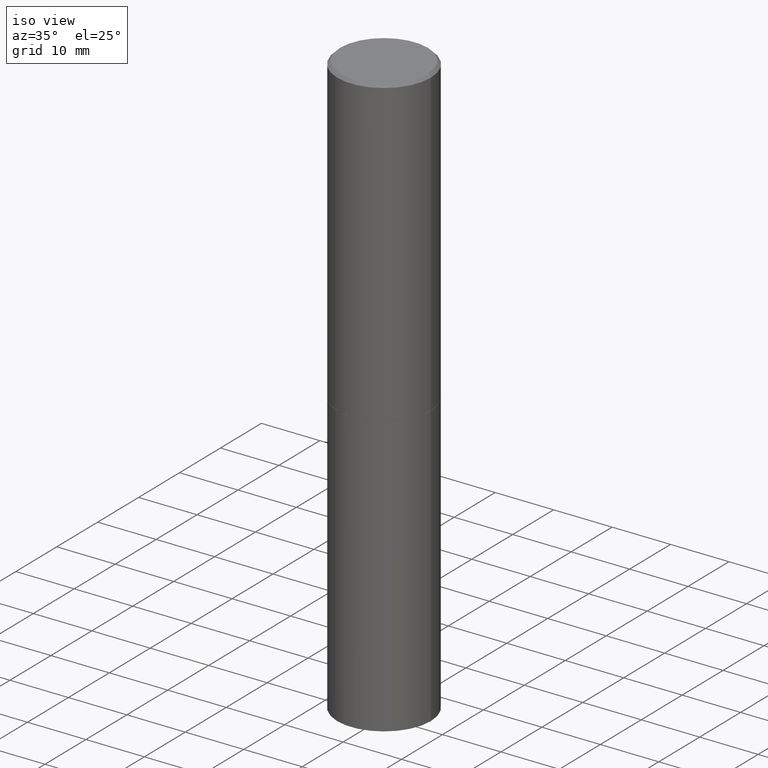
[diagram: clean part render]
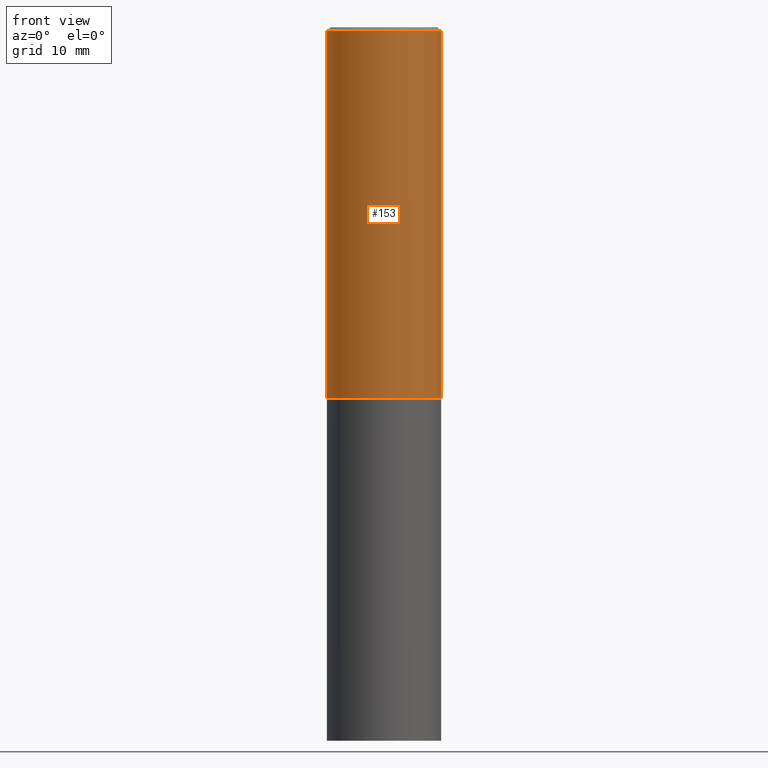
[diagram: tour spotlight — one face highlighted and labeled with its STEP entity id]
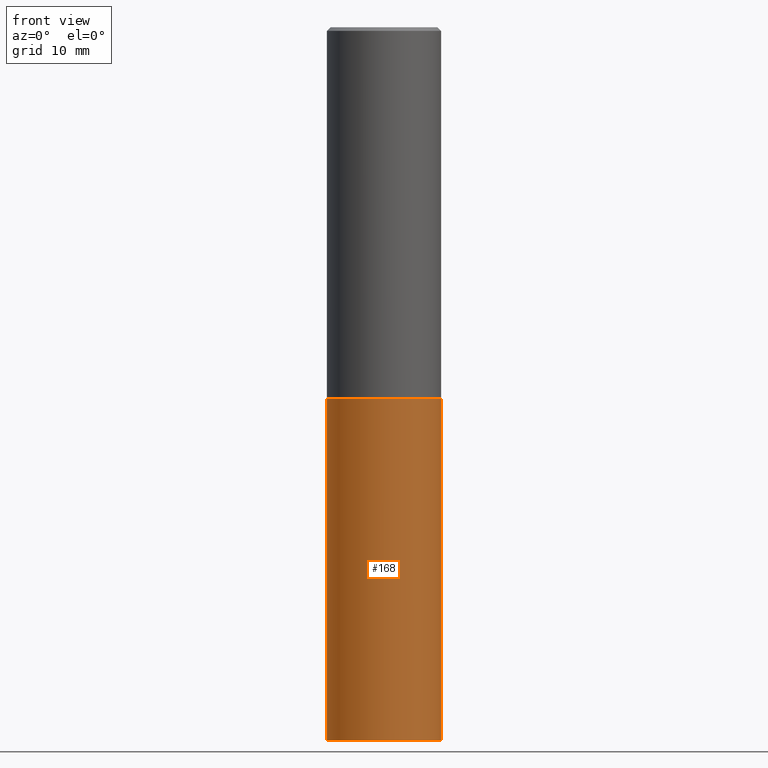
[diagram: tour spotlight — one face highlighted and labeled with its STEP entity id]
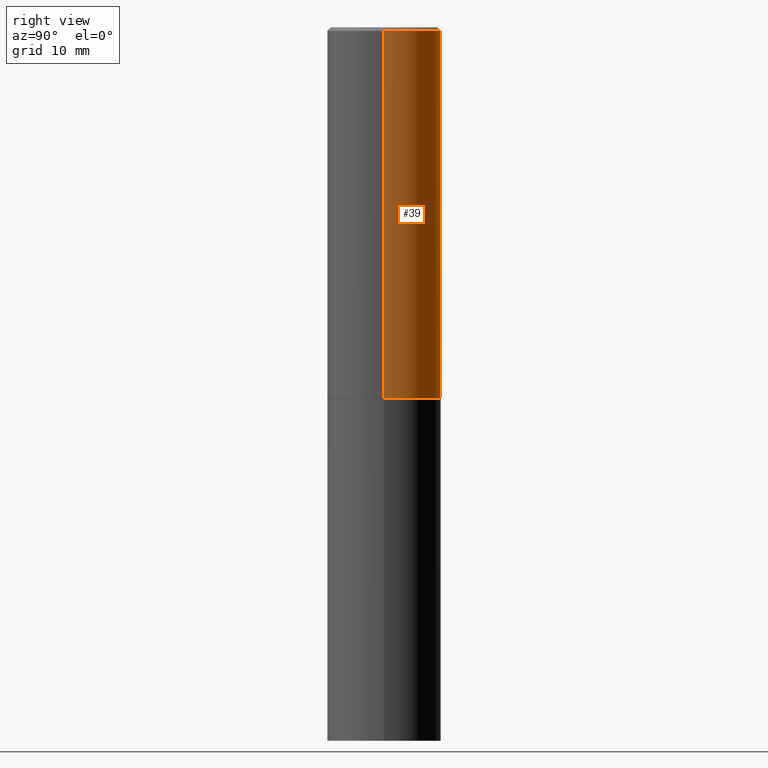
[diagram: tour spotlight — one face highlighted and labeled with its STEP entity id]
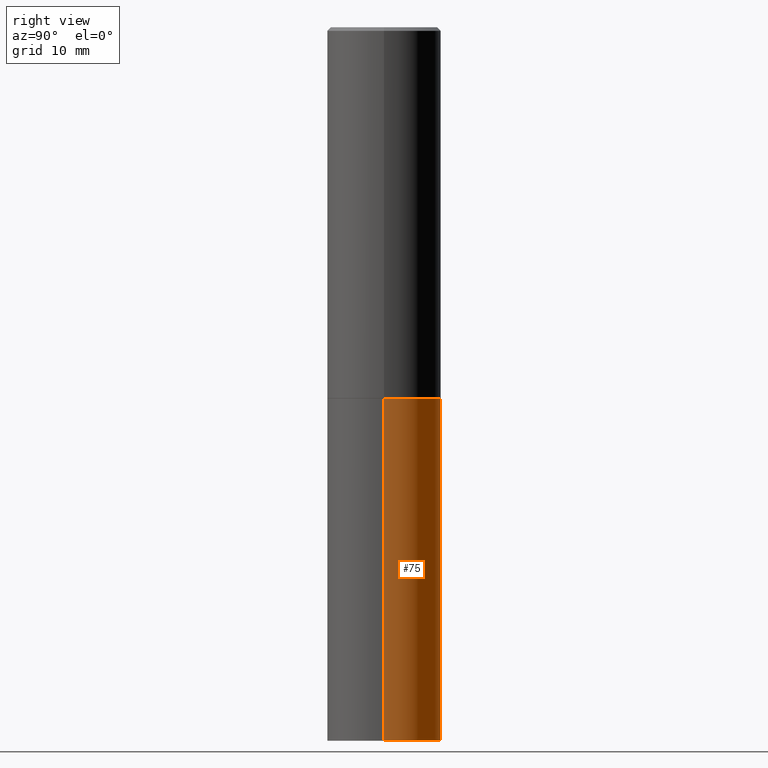
[diagram: tour spotlight — one face highlighted and labeled with its STEP entity id]
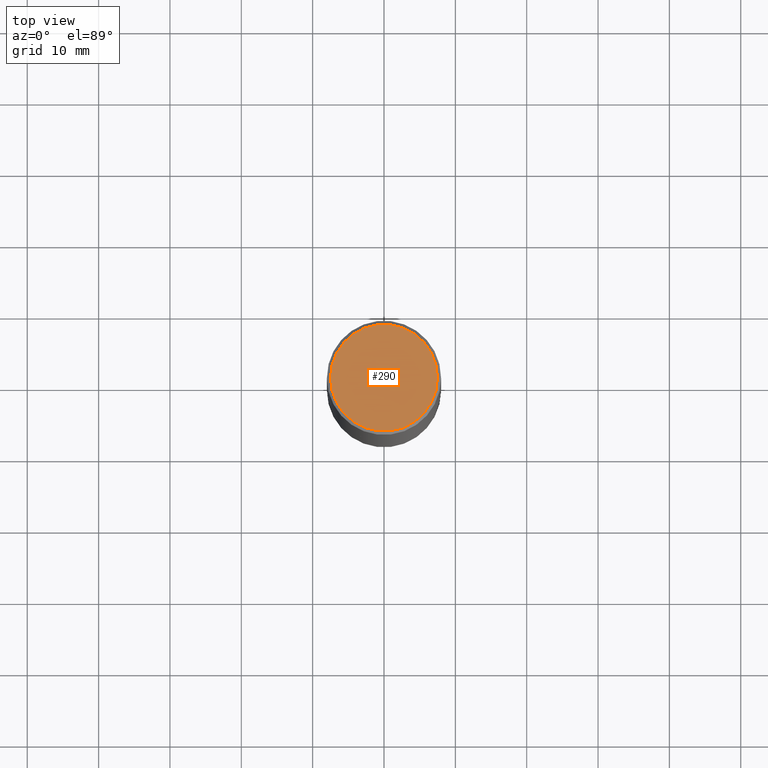
[diagram: tour spotlight — one face highlighted and labeled with its STEP entity id]
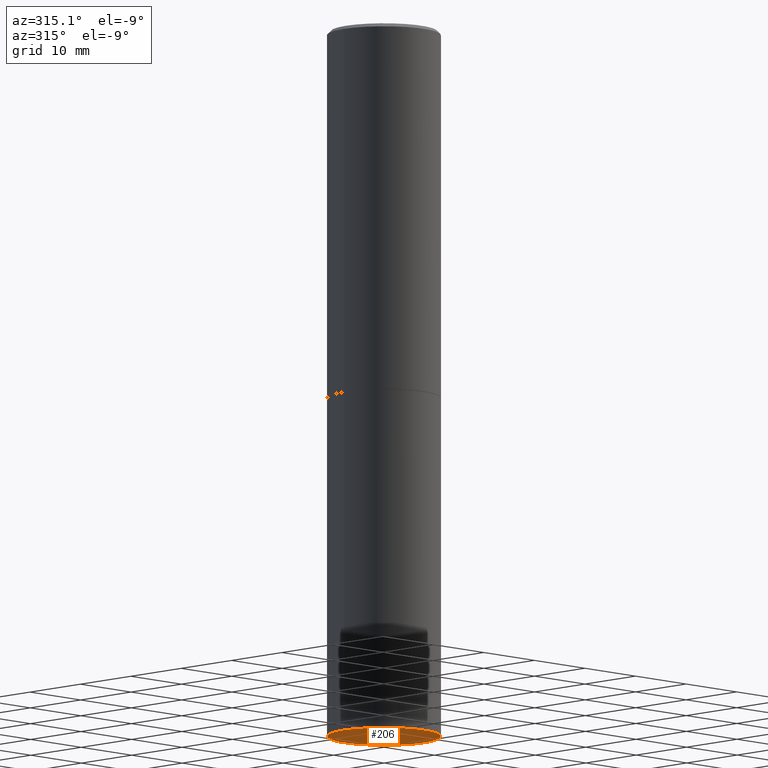
[diagram: tour spotlight — one face highlighted and labeled with its STEP entity id]
A machine part: a face-by-face anatomy tour. The part has 12 B-rep faces; the first image is the clean iso view, then the 6 largest visible faces are spotlighted one at a time (largest first), each with its STEP entity span.

Face 1 — front view, entity #153. In plain terms, the highlighted cylindrical surface (partial cylindrical patch) has radius 7.9997 mm, axis along (-0, 0, 1).
Definition (entity closure, byte-faithful):
#19 = CARTESIAN_POINT ( 'NONE',  ( -0.3149499999999997857, 2.129454468560425389E-15, -0.02000000000000006981 ) ) ;
#23 = VECTOR ( 'NONE', #145, 39.37007874015748143 ) ;
#25 = DIRECTION ( 'NONE',  ( 1.000000000000000000, -6.982962677686266711E-15, 0.000000000000000000 ) ) ;
#37 = LINE ( 'NONE', #181, #23 ) ;
#47 = EDGE_CURVE ( 'NONE', #280, #119, #315, .T. ) ;
#48 = CARTESIAN_POINT ( 'NONE',  ( 5.003918271216025517E-29, -7.144269115540843617E-15, -2.046199999999999797 ) ) ;
#54 = CARTESIAN_POINT ( 'NONE',  ( 0.3149500000000000077, -9.343553210878133488E-15, -2.046199999999999797 ) ) ;
#56 = DIRECTION ( 'NONE',  ( 1.000000000000000000, -6.982962677686266711E-15, 0.000000000000000000 ) ) ;
#82 = CARTESIAN_POINT ( 'NONE',  ( -0.3149500000000000077, -1.369195024882416092E-15, -2.046199999999999797 ) ) ;
#83 = EDGE_LOOP ( 'NONE', ( #227, #172, #102, #89 ) ) ;
#89 = ORIENTED_EDGE ( 'NONE', *, *, #319, .F. ) ;
#102 = ORIENTED_EDGE ( 'NONE', *, *, #47, .T. ) ;
#112 = AXIS2_PLACEMENT_3D ( 'NONE', #354, #272, #56 ) ;
#119 = VERTEX_POINT ( 'NONE', #156 ) ;
#124 = CIRCLE ( 'NONE', #112, 0.3149499999999997857 ) ;
#135 = FACE_OUTER_BOUND ( 'NONE', #83, .T. ) ;
#141 = EDGE_CURVE ( 'NONE', #349, #250, #37, .T. ) ;
#145 = DIRECTION ( 'NONE',  ( -2.445468806185136877E-29, 3.491481338843145188E-15, 1.000000000000000000 ) ) ;
#149 = AXIS2_PLACEMENT_3D ( 'NONE', #243, #264, #163 ) ;
#153 = ADVANCED_FACE ( 'NONE', ( #135 ), #194, .T. ) ;
#156 = CARTESIAN_POINT ( 'NONE',  ( 0.3149499999999997857, -2.230543471175005872E-15, -0.02000000000000006981 ) ) ;
#163 = DIRECTION ( 'NONE',  ( 1.000000000000000000, -6.982962677686265922E-15, 4.876176775795935232E-29 ) ) ;
#172 = ORIENTED_EDGE ( 'NONE', *, *, #306, .T. ) ;
#181 = CARTESIAN_POINT ( 'NONE',  ( -0.3149499999999998967, 2.237854346276434801E-15, -1.549218606675782116E-29 ) ) ;
#194 = CYLINDRICAL_SURFACE ( 'NONE', #149, 0.3149499999999998967 ) ;
#201 = CARTESIAN_POINT ( 'NONE',  ( 0.3149499999999998967, -2.199284095337288688E-15, 1.535751875536929289E-29 ) ) ;
#226 = CIRCLE ( 'NONE', #258, 0.3149500000000000077 ) ;
#227 = ORIENTED_EDGE ( 'NONE', *, *, #141, .F. ) ;
#243 = CARTESIAN_POINT ( 'NONE',  ( 0.000000000000000000, 0.000000000000000000, 0.000000000000000000 ) ) ;
#250 = VERTEX_POINT ( 'NONE', #19 ) ;
#258 = AXIS2_PLACEMENT_3D ( 'NONE', #48, #302, #25 ) ;
#264 = DIRECTION ( 'NONE',  ( -2.445468806185136597E-29, 3.491481338843145583E-15, 1.000000000000000000 ) ) ;
#272 = DIRECTION ( 'NONE',  ( -2.445468806185136597E-29, 3.491481338843145583E-15, 1.000000000000000000 ) ) ;
#280 = VERTEX_POINT ( 'NONE', #54 ) ;
#287 = VECTOR ( 'NONE', #317, 39.37007874015748143 ) ;
#302 = DIRECTION ( 'NONE',  ( -2.445468806185136597E-29, 3.491481338843145583E-15, 1.000000000000000000 ) ) ;
#306 = EDGE_CURVE ( 'NONE', #349, #280, #226, .T. ) ;
#315 = LINE ( 'NONE', #201, #287 ) ;
#317 = DIRECTION ( 'NONE',  ( -2.445468806185136877E-29, 3.491481338843145188E-15, 1.000000000000000000 ) ) ;
#319 = EDGE_CURVE ( 'NONE', #250, #119, #124, .T. ) ;
#349 = VERTEX_POINT ( 'NONE', #82 ) ;
#354 = CARTESIAN_POINT ( 'NONE',  ( 4.890937612370289799E-31, -6.982962677686315028E-17, -0.02000000000000006981 ) ) ;

Face 2 — front view, entity #168. In plain terms, the highlighted cylindrical surface (partial cylindrical patch) has radius 7.9997 mm, axis along (-0, 0, 1).
Definition (entity closure, byte-faithful):
#35 = VERTEX_POINT ( 'NONE', #261 ) ;
#42 = EDGE_CURVE ( 'NONE', #35, #136, #46, .T. ) ;
#46 = LINE ( 'NONE', #68, #148 ) ;
#51 = CARTESIAN_POINT ( 'NONE',  ( 0.000000000000000000, 0.000000000000000000, 0.000000000000000000 ) ) ;
#59 = DIRECTION ( 'NONE',  ( 1.000000000000000000, -6.982962677686266711E-15, 4.876176775795936353E-29 ) ) ;
#68 = CARTESIAN_POINT ( 'NONE',  ( -0.3149500000000000077, 2.237854346276435590E-15, -1.549218606675782676E-29 ) ) ;
#69 = AXIS2_PLACEMENT_3D ( 'NONE', #188, #297, #213 ) ;
#72 = DIRECTION ( 'NONE',  ( -2.445468806185136877E-29, 3.491481338843145188E-15, 1.000000000000000000 ) ) ;
#77 = LINE ( 'NONE', #185, #232 ) ;
#93 = AXIS2_PLACEMENT_3D ( 'NONE', #324, #131, #114 ) ;
#108 = CYLINDRICAL_SURFACE ( 'NONE', #276, 0.3149500000000000077 ) ;
#111 = DIRECTION ( 'NONE',  ( -2.445468806185136597E-29, 3.491481338843145583E-15, 1.000000000000000000 ) ) ;
#114 = DIRECTION ( 'NONE',  ( 1.000000000000000000, -6.982962677686269866E-15, 0.000000000000000000 ) ) ;
#131 = DIRECTION ( 'NONE',  ( -2.445468806185136597E-29, 3.491481338843145583E-15, 1.000000000000000000 ) ) ;
#136 = VERTEX_POINT ( 'NONE', #283 ) ;
#148 = VECTOR ( 'NONE', #72, 39.37007874015748143 ) ;
#168 = ADVANCED_FACE ( 'NONE', ( #359 ), #108, .T. ) ;
#173 = ORIENTED_EDGE ( 'NONE', *, *, #335, .F. ) ;
#178 = EDGE_CURVE ( 'NONE', #303, #222, #77, .T. ) ;
#185 = CARTESIAN_POINT ( 'NONE',  ( 0.3149500000000000077, -2.199284095337289871E-15, 1.535751875536930130E-29 ) ) ;
#188 = CARTESIAN_POINT ( 'NONE',  ( 5.006363740022211120E-29, -7.147760596879686624E-15, -2.047199999999999687 ) ) ;
#195 = ORIENTED_EDGE ( 'NONE', *, *, #42, .F. ) ;
#197 = EDGE_LOOP ( 'NONE', ( #195, #244, #217, #173 ) ) ;
#213 = DIRECTION ( 'NONE',  ( 1.000000000000000000, -6.982962677686269866E-15, 0.000000000000000000 ) ) ;
#216 = CARTESIAN_POINT ( 'NONE',  ( 0.3149500000000000077, -1.594524612636275486E-14, -3.937000000000000277 ) ) ;
#217 = ORIENTED_EDGE ( 'NONE', *, *, #178, .T. ) ;
#220 = DIRECTION ( 'NONE',  ( -2.445468806185136877E-29, 3.491481338843145188E-15, 1.000000000000000000 ) ) ;
#222 = VERTEX_POINT ( 'NONE', #331 ) ;
#232 = VECTOR ( 'NONE', #220, 39.37007874015748143 ) ;
#244 = ORIENTED_EDGE ( 'NONE', *, *, #263, .T. ) ;
#261 = CARTESIAN_POINT ( 'NONE',  ( -0.3149500000000000077, -8.209006967676138246E-15, -3.937000000000000277 ) ) ;
#263 = EDGE_CURVE ( 'NONE', #35, #303, #322, .T. ) ;
#276 = AXIS2_PLACEMENT_3D ( 'NONE', #51, #111, #59 ) ;
#283 = CARTESIAN_POINT ( 'NONE',  ( -0.3149500000000000077, -8.209006967676138246E-15, -2.047199999999999687 ) ) ;
#297 = DIRECTION ( 'NONE',  ( -2.445468806185136597E-29, 3.491481338843145583E-15, 1.000000000000000000 ) ) ;
#303 = VERTEX_POINT ( 'NONE', #216 ) ;
#322 = CIRCLE ( 'NONE', #93, 0.3149500000000000077 ) ;
#324 = CARTESIAN_POINT ( 'NONE',  ( 9.627810689950883669E-29, -1.374596203102546341E-14, -3.937000000000000277 ) ) ;
#330 = CIRCLE ( 'NONE', #69, 0.3149500000000000077 ) ;
#331 = CARTESIAN_POINT ( 'NONE',  ( 0.3149500000000000077, -9.347044692216978073E-15, -2.047199999999999687 ) ) ;
#335 = EDGE_CURVE ( 'NONE', #136, #222, #330, .T. ) ;
#359 = FACE_OUTER_BOUND ( 'NONE', #197, .T. ) ;

Face 3 — right view, entity #39. In plain terms, the highlighted cylindrical surface (partial cylindrical patch) has radius 7.9997 mm, axis along (-0, 0, 1).
Definition (entity closure, byte-faithful):
#7 = DIRECTION ( 'NONE',  ( 1.000000000000000000, -6.982962677686265922E-15, 4.876176775795935232E-29 ) ) ;
#19 = CARTESIAN_POINT ( 'NONE',  ( -0.3149499999999997857, 2.129454468560425389E-15, -0.02000000000000006981 ) ) ;
#23 = VECTOR ( 'NONE', #145, 39.37007874015748143 ) ;
#27 = DIRECTION ( 'NONE',  ( 1.000000000000000000, -6.982962677686266711E-15, 0.000000000000000000 ) ) ;
#29 = DIRECTION ( 'NONE',  ( 1.000000000000000000, -6.982962677686266711E-15, 0.000000000000000000 ) ) ;
#30 = ORIENTED_EDGE ( 'NONE', *, *, #221, .F. ) ;
#34 = ORIENTED_EDGE ( 'NONE', *, *, #47, .F. ) ;
#37 = LINE ( 'NONE', #181, #23 ) ;
#38 = CARTESIAN_POINT ( 'NONE',  ( 0.000000000000000000, 0.000000000000000000, 0.000000000000000000 ) ) ;
#39 = ADVANCED_FACE ( 'NONE', ( #43 ), #90, .T. ) ;
#43 = FACE_OUTER_BOUND ( 'NONE', #252, .T. ) ;
#47 = EDGE_CURVE ( 'NONE', #280, #119, #315, .T. ) ;
#54 = CARTESIAN_POINT ( 'NONE',  ( 0.3149500000000000077, -9.343553210878133488E-15, -2.046199999999999797 ) ) ;
#65 = CIRCLE ( 'NONE', #174, 0.3149499999999997857 ) ;
#80 = DIRECTION ( 'NONE',  ( -2.445468806185136597E-29, 3.491481338843145583E-15, 1.000000000000000000 ) ) ;
#82 = CARTESIAN_POINT ( 'NONE',  ( -0.3149500000000000077, -1.369195024882416092E-15, -2.046199999999999797 ) ) ;
#88 = ORIENTED_EDGE ( 'NONE', *, *, #344, .T. ) ;
#90 = CYLINDRICAL_SURFACE ( 'NONE', #257, 0.3149499999999998967 ) ;
#119 = VERTEX_POINT ( 'NONE', #156 ) ;
#141 = EDGE_CURVE ( 'NONE', #349, #250, #37, .T. ) ;
#145 = DIRECTION ( 'NONE',  ( -2.445468806185136877E-29, 3.491481338843145188E-15, 1.000000000000000000 ) ) ;
#154 = CIRCLE ( 'NONE', #170, 0.3149500000000000077 ) ;
#156 = CARTESIAN_POINT ( 'NONE',  ( 0.3149499999999997857, -2.230543471175005872E-15, -0.02000000000000006981 ) ) ;
#170 = AXIS2_PLACEMENT_3D ( 'NONE', #326, #328, #27 ) ;
#174 = AXIS2_PLACEMENT_3D ( 'NONE', #275, #80, #29 ) ;
#181 = CARTESIAN_POINT ( 'NONE',  ( -0.3149499999999998967, 2.237854346276434801E-15, -1.549218606675782116E-29 ) ) ;
#201 = CARTESIAN_POINT ( 'NONE',  ( 0.3149499999999998967, -2.199284095337288688E-15, 1.535751875536929289E-29 ) ) ;
#221 = EDGE_CURVE ( 'NONE', #119, #250, #65, .T. ) ;
#250 = VERTEX_POINT ( 'NONE', #19 ) ;
#252 = EDGE_LOOP ( 'NONE', ( #88, #329, #30, #34 ) ) ;
#257 = AXIS2_PLACEMENT_3D ( 'NONE', #38, #343, #7 ) ;
#275 = CARTESIAN_POINT ( 'NONE',  ( 4.890937612370289799E-31, -6.982962677686315028E-17, -0.02000000000000006981 ) ) ;
#280 = VERTEX_POINT ( 'NONE', #54 ) ;
#287 = VECTOR ( 'NONE', #317, 39.37007874015748143 ) ;
#315 = LINE ( 'NONE', #201, #287 ) ;
#317 = DIRECTION ( 'NONE',  ( -2.445468806185136877E-29, 3.491481338843145188E-15, 1.000000000000000000 ) ) ;
#326 = CARTESIAN_POINT ( 'NONE',  ( 5.003918271216025517E-29, -7.144269115540843617E-15, -2.046199999999999797 ) ) ;
#328 = DIRECTION ( 'NONE',  ( -2.445468806185136597E-29, 3.491481338843145583E-15, 1.000000000000000000 ) ) ;
#329 = ORIENTED_EDGE ( 'NONE', *, *, #141, .T. ) ;
#343 = DIRECTION ( 'NONE',  ( -2.445468806185136597E-29, 3.491481338843145583E-15, 1.000000000000000000 ) ) ;
#344 = EDGE_CURVE ( 'NONE', #280, #349, #154, .T. ) ;
#349 = VERTEX_POINT ( 'NONE', #82 ) ;

Face 4 — right view, entity #75. In plain terms, the highlighted cylindrical surface (partial cylindrical patch) has radius 7.9997 mm, axis along (-0, 0, 1).
Definition (entity closure, byte-faithful):
#3 = DIRECTION ( 'NONE',  ( -2.445468806185136597E-29, 3.491481338843145583E-15, 1.000000000000000000 ) ) ;
#9 = AXIS2_PLACEMENT_3D ( 'NONE', #95, #3, #128 ) ;
#35 = VERTEX_POINT ( 'NONE', #261 ) ;
#42 = EDGE_CURVE ( 'NONE', #35, #136, #46, .T. ) ;
#46 = LINE ( 'NONE', #68, #148 ) ;
#52 = CIRCLE ( 'NONE', #99, 0.3149500000000000077 ) ;
#68 = CARTESIAN_POINT ( 'NONE',  ( -0.3149500000000000077, 2.237854346276435590E-15, -1.549218606675782676E-29 ) ) ;
#72 = DIRECTION ( 'NONE',  ( -2.445468806185136877E-29, 3.491481338843145188E-15, 1.000000000000000000 ) ) ;
#75 = ADVANCED_FACE ( 'NONE', ( #147 ), #125, .T. ) ;
#77 = LINE ( 'NONE', #185, #232 ) ;
#95 = CARTESIAN_POINT ( 'NONE',  ( 0.000000000000000000, 0.000000000000000000, 0.000000000000000000 ) ) ;
#99 = AXIS2_PLACEMENT_3D ( 'NONE', #164, #129, #190 ) ;
#106 = DIRECTION ( 'NONE',  ( 1.000000000000000000, -6.982962677686269866E-15, 0.000000000000000000 ) ) ;
#115 = ORIENTED_EDGE ( 'NONE', *, *, #178, .F. ) ;
#118 = AXIS2_PLACEMENT_3D ( 'NONE', #357, #134, #106 ) ;
#122 = ORIENTED_EDGE ( 'NONE', *, *, #42, .T. ) ;
#125 = CYLINDRICAL_SURFACE ( 'NONE', #9, 0.3149500000000000077 ) ;
#128 = DIRECTION ( 'NONE',  ( 1.000000000000000000, -6.982962677686266711E-15, 4.876176775795936353E-29 ) ) ;
#129 = DIRECTION ( 'NONE',  ( -2.445468806185136597E-29, 3.491481338843145583E-15, 1.000000000000000000 ) ) ;
#134 = DIRECTION ( 'NONE',  ( -2.445468806185136597E-29, 3.491481338843145583E-15, 1.000000000000000000 ) ) ;
#136 = VERTEX_POINT ( 'NONE', #283 ) ;
#147 = FACE_OUTER_BOUND ( 'NONE', #249, .T. ) ;
#148 = VECTOR ( 'NONE', #72, 39.37007874015748143 ) ;
#164 = CARTESIAN_POINT ( 'NONE',  ( 9.627810689950883669E-29, -1.374596203102546341E-14, -3.937000000000000277 ) ) ;
#178 = EDGE_CURVE ( 'NONE', #303, #222, #77, .T. ) ;
#185 = CARTESIAN_POINT ( 'NONE',  ( 0.3149500000000000077, -2.199284095337289871E-15, 1.535751875536930130E-29 ) ) ;
#190 = DIRECTION ( 'NONE',  ( 1.000000000000000000, -6.982962677686269866E-15, 0.000000000000000000 ) ) ;
#198 = ORIENTED_EDGE ( 'NONE', *, *, #336, .F. ) ;
#216 = CARTESIAN_POINT ( 'NONE',  ( 0.3149500000000000077, -1.594524612636275486E-14, -3.937000000000000277 ) ) ;
#220 = DIRECTION ( 'NONE',  ( -2.445468806185136877E-29, 3.491481338843145188E-15, 1.000000000000000000 ) ) ;
#222 = VERTEX_POINT ( 'NONE', #331 ) ;
#232 = VECTOR ( 'NONE', #220, 39.37007874015748143 ) ;
#249 = EDGE_LOOP ( 'NONE', ( #341, #122, #198, #115 ) ) ;
#261 = CARTESIAN_POINT ( 'NONE',  ( -0.3149500000000000077, -8.209006967676138246E-15, -3.937000000000000277 ) ) ;
#274 = EDGE_CURVE ( 'NONE', #303, #35, #52, .T. ) ;
#283 = CARTESIAN_POINT ( 'NONE',  ( -0.3149500000000000077, -8.209006967676138246E-15, -2.047199999999999687 ) ) ;
#303 = VERTEX_POINT ( 'NONE', #216 ) ;
#331 = CARTESIAN_POINT ( 'NONE',  ( 0.3149500000000000077, -9.347044692216978073E-15, -2.047199999999999687 ) ) ;
#336 = EDGE_CURVE ( 'NONE', #222, #136, #342, .T. ) ;
#341 = ORIENTED_EDGE ( 'NONE', *, *, #274, .T. ) ;
#342 = CIRCLE ( 'NONE', #118, 0.3149500000000000077 ) ;
#357 = CARTESIAN_POINT ( 'NONE',  ( 5.006363740022211120E-29, -7.147760596879686624E-15, -2.047199999999999687 ) ) ;

Face 5 — top view, entity #290. In plain terms, the highlighted planar face has unit normal (0, -0, -1).
Definition (entity closure, byte-faithful):
#103 = EDGE_CURVE ( 'NONE', #167, #366, #337, .T. ) ;
#105 = FACE_OUTER_BOUND ( 'NONE', #224, .T. ) ;
#123 = AXIS2_PLACEMENT_3D ( 'NONE', #240, #295, #193 ) ;
#137 = DIRECTION ( 'NONE',  ( -2.445468806185136597E-29, 3.491481338843145583E-15, 1.000000000000000000 ) ) ;
#144 = ORIENTED_EDGE ( 'NONE', *, *, #231, .T. ) ;
#167 = VERTEX_POINT ( 'NONE', #238 ) ;
#179 = AXIS2_PLACEMENT_3D ( 'NONE', #223, #137, #333 ) ;
#180 = AXIS2_PLACEMENT_3D ( 'NONE', #235, #229, #347 ) ;
#193 = DIRECTION ( 'NONE',  ( -1.000000000000000000, 6.982962677686265922E-15, -4.876176775795935793E-29 ) ) ;
#211 = PLANE ( 'NONE',  #123 ) ;
#223 = CARTESIAN_POINT ( 'NONE',  ( -2.087702828670439639E-46, 2.980686340760894400E-32, 8.537024980200822558E-18 ) ) ;
#224 = EDGE_LOOP ( 'NONE', ( #360, #144 ) ) ;
#229 = DIRECTION ( 'NONE',  ( -2.445468806185136597E-29, 3.491481338843145583E-15, 1.000000000000000000 ) ) ;
#231 = EDGE_CURVE ( 'NONE', #366, #167, #313, .T. ) ;
#235 = CARTESIAN_POINT ( 'NONE',  ( -2.087702828670439639E-46, 2.980686340760894400E-32, 8.537024980200822558E-18 ) ) ;
#238 = CARTESIAN_POINT ( 'NONE',  ( -0.2949499999999997679, 2.094539655171994135E-15, 8.537024980186296424E-18 ) ) ;
#240 = CARTESIAN_POINT ( 'NONE',  ( 2.059624841783562486E-15, 0.2949499999999997679, -1.025543908401684563E-15 ) ) ;
#290 = ADVANCED_FACE ( 'NONE', ( #105 ), #211, .F. ) ;
#295 = DIRECTION ( 'NONE',  ( 2.438088387897960049E-29, -3.491481338843145188E-15, -1.000000000000000000 ) ) ;
#313 = CIRCLE ( 'NONE', #179, 0.2949499999999997679 ) ;
#333 = DIRECTION ( 'NONE',  ( 1.000000000000000000, -6.982962677686267499E-15, 4.876053491004738270E-29 ) ) ;
#337 = CIRCLE ( 'NONE', #180, 0.2949499999999997679 ) ;
#347 = DIRECTION ( 'NONE',  ( 1.000000000000000000, -6.982962677686267499E-15, 4.876053491004738270E-29 ) ) ;
#356 = CARTESIAN_POINT ( 'NONE',  ( 0.2949499999999997679, -2.127023677808858891E-15, 8.537024980215462707E-18 ) ) ;
#360 = ORIENTED_EDGE ( 'NONE', *, *, #103, .T. ) ;
#366 = VERTEX_POINT ( 'NONE', #356 ) ;

Face 6 — auxiliary view, entity #206. In plain terms, the highlighted planar face has unit normal (0, -0, -1).
Definition (entity closure, byte-faithful):
#35 = VERTEX_POINT ( 'NONE', #261 ) ;
#52 = CIRCLE ( 'NONE', #99, 0.3149500000000000077 ) ;
#93 = AXIS2_PLACEMENT_3D ( 'NONE', #324, #131, #114 ) ;
#99 = AXIS2_PLACEMENT_3D ( 'NONE', #164, #129, #190 ) ;
#114 = DIRECTION ( 'NONE',  ( 1.000000000000000000, -6.982962677686269866E-15, 0.000000000000000000 ) ) ;
#129 = DIRECTION ( 'NONE',  ( -2.445468806185136597E-29, 3.491481338843145583E-15, 1.000000000000000000 ) ) ;
#131 = DIRECTION ( 'NONE',  ( -2.445468806185136597E-29, 3.491481338843145583E-15, 1.000000000000000000 ) ) ;
#142 = ORIENTED_EDGE ( 'NONE', *, *, #274, .F. ) ;
#161 = DIRECTION ( 'NONE',  ( 2.438088387897960049E-29, -3.491481338843145188E-15, -1.000000000000000000 ) ) ;
#164 = CARTESIAN_POINT ( 'NONE',  ( 9.627810689950883669E-29, -1.374596203102546341E-14, -3.937000000000000277 ) ) ;
#166 = DIRECTION ( 'NONE',  ( -1.000000000000000000, 6.982962677686265922E-15, -4.876176775795935793E-29 ) ) ;
#190 = DIRECTION ( 'NONE',  ( 1.000000000000000000, -6.982962677686269866E-15, 0.000000000000000000 ) ) ;
#203 = AXIS2_PLACEMENT_3D ( 'NONE', #351, #161, #166 ) ;
#206 = ADVANCED_FACE ( 'NONE', ( #242 ), #304, .T. ) ;
#216 = CARTESIAN_POINT ( 'NONE',  ( 0.3149500000000000077, -1.594524612636275486E-14, -3.937000000000000277 ) ) ;
#242 = FACE_OUTER_BOUND ( 'NONE', #311, .T. ) ;
#261 = CARTESIAN_POINT ( 'NONE',  ( -0.3149500000000000077, -8.209006967676138246E-15, -3.937000000000000277 ) ) ;
#263 = EDGE_CURVE ( 'NONE', #35, #303, #322, .T. ) ;
#274 = EDGE_CURVE ( 'NONE', #303, #35, #52, .T. ) ;
#279 = ORIENTED_EDGE ( 'NONE', *, *, #263, .F. ) ;
#303 = VERTEX_POINT ( 'NONE', #216 ) ;
#304 = PLANE ( 'NONE',  #203 ) ;
#311 = EDGE_LOOP ( 'NONE', ( #142, #279 ) ) ;
#322 = CIRCLE ( 'NONE', #93, 0.3149500000000000077 ) ;
#324 = CARTESIAN_POINT ( 'NONE',  ( 9.627810689950883669E-29, -1.374596203102546341E-14, -3.937000000000000277 ) ) ;
#351 = CARTESIAN_POINT ( 'NONE',  ( 2.199284095337385323E-15, 0.3149499999999862965, -3.937000000000001165 ) ) ;